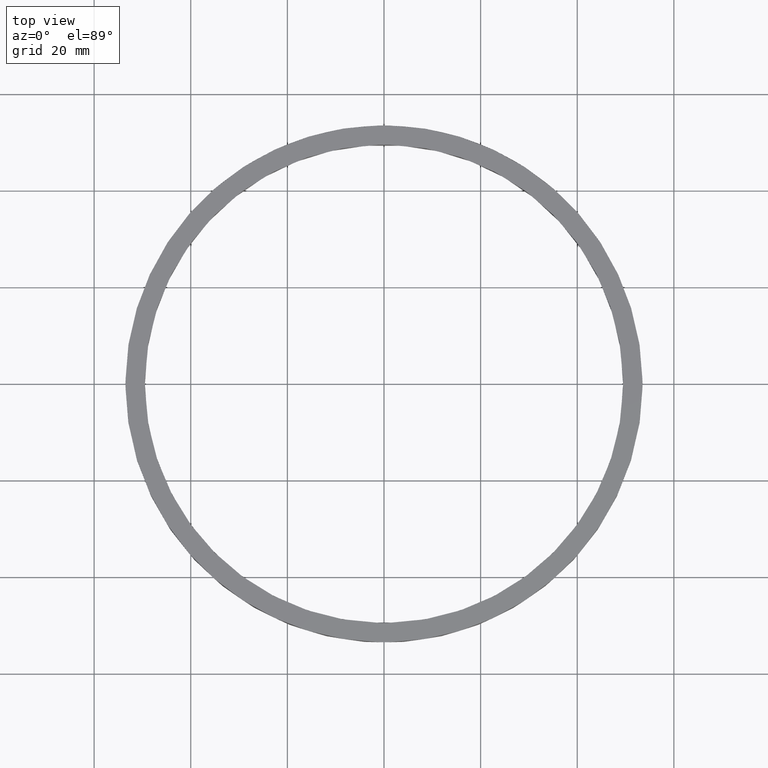
[diagram: clean part render]
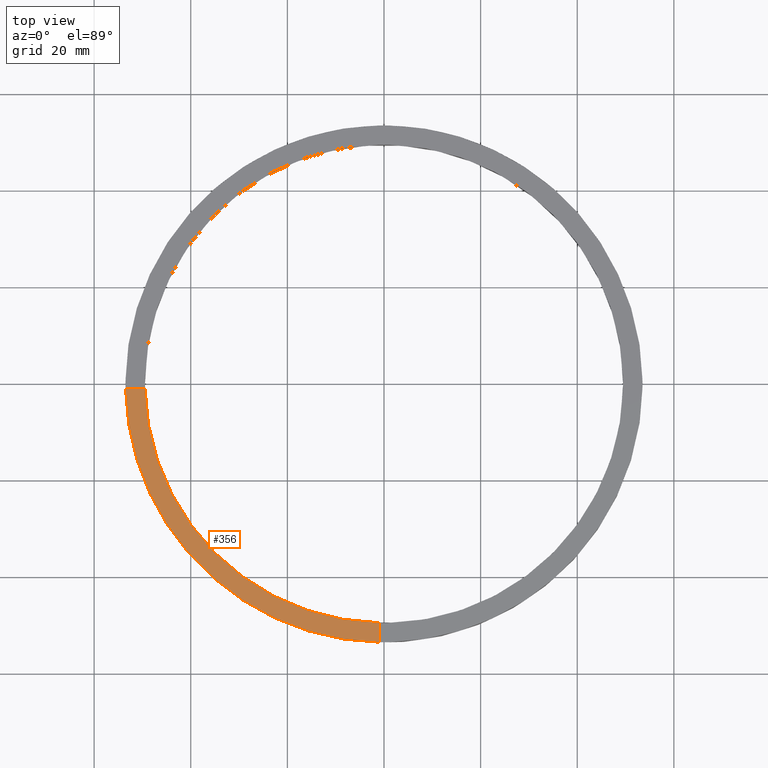
[diagram: same view with one face highlighted and labeled with its STEP entity id]
A machine part, top view. The second image highlights one B-rep face of the part: STEP entity #356.
In plain terms, the highlighted planar face has unit normal (0, 0, 1).
Its self-contained STEP definition (entity closure, byte-faithful):
#13 = CARTESIAN_POINT ( 'NONE',  ( -1.000000000000155875, -53.49065338916696533, 5.000000000000000000 ) ) ;
#18 = DIRECTION ( 'NONE',  ( 1.000000000000000000, 0.000000000000000000, 0.000000000000000000 ) ) ;
#21 = DIRECTION ( 'NONE',  ( 1.000000000000000000, 0.000000000000000000, -0.000000000000000000 ) ) ;
#65 = PLANE ( 'NONE',  #557 ) ;
#77 = LINE ( 'NONE', #460, #603 ) ;
#107 = FACE_OUTER_BOUND ( 'NONE', #176, .T. ) ;
#130 = ORIENTED_EDGE ( 'NONE', *, *, #225, .F. ) ;
#154 = VERTEX_POINT ( 'NONE', #682 ) ;
#170 = VERTEX_POINT ( 'NONE', #13 ) ;
#176 = EDGE_LOOP ( 'NONE', ( #130, #206, #396, #676 ) ) ;
#187 = VERTEX_POINT ( 'NONE', #511 ) ;
#191 = DIRECTION ( 'NONE',  ( 1.000000000000000000, 0.000000000000000000, 0.000000000000000000 ) ) ;
#192 = DIRECTION ( 'NONE',  ( 1.301042606982605074E-16, -1.000000000000000000, 0.000000000000000000 ) ) ;
#205 = CARTESIAN_POINT ( 'NONE',  ( 0.000000000000000000, 0.000000000000000000, 5.000000000000000000 ) ) ;
#206 = ORIENTED_EDGE ( 'NONE', *, *, #334, .F. ) ;
#225 = EDGE_CURVE ( 'NONE', #187, #170, #357, .T. ) ;
#230 = CARTESIAN_POINT ( 'NONE',  ( -49.48989795907849043, -1.000000000000031974, 5.000000000000000000 ) ) ;
#247 = AXIS2_PLACEMENT_3D ( 'NONE', #205, #339, #191 ) ;
#264 = CARTESIAN_POINT ( 'NONE',  ( 0.000000000000000000, 0.000000000000000000, 5.000000000000000000 ) ) ;
#270 = DIRECTION ( 'NONE',  ( 1.000000000000000000, 1.951563910473907735E-16, -0.000000000000000000 ) ) ;
#298 = EDGE_CURVE ( 'NONE', #154, #462, #77, .T. ) ;
#299 = AXIS2_PLACEMENT_3D ( 'NONE', #608, #563, #18 ) ;
#325 = CIRCLE ( 'NONE', #299, 49.50000000000000711 ) ;
#334 = EDGE_CURVE ( 'NONE', #462, #187, #325, .T. ) ;
#339 = DIRECTION ( 'NONE',  ( 0.000000000000000000, 0.000000000000000000, 1.000000000000000000 ) ) ;
#356 = ADVANCED_FACE ( 'NONE', ( #107 ), #65, .T. ) ;
#357 = LINE ( 'NONE', #665, #591 ) ;
#385 = DIRECTION ( 'NONE',  ( 0.000000000000000000, 0.000000000000000000, 1.000000000000000000 ) ) ;
#396 = ORIENTED_EDGE ( 'NONE', *, *, #298, .F. ) ;
#460 = CARTESIAN_POINT ( 'NONE',  ( -43.50000000000018474, -1.000000000000030642, 5.000000000000000000 ) ) ;
#462 = VERTEX_POINT ( 'NONE', #230 ) ;
#490 = EDGE_CURVE ( 'NONE', #154, #170, #627, .T. ) ;
#511 = CARTESIAN_POINT ( 'NONE',  ( -1.000000000000156319, -49.48989795907849043, 5.000000000000000000 ) ) ;
#557 = AXIS2_PLACEMENT_3D ( 'NONE', #264, #385, #21 ) ;
#563 = DIRECTION ( 'NONE',  ( 0.000000000000000000, 0.000000000000000000, 1.000000000000000000 ) ) ;
#591 = VECTOR ( 'NONE', #192, 1000.000000000000000 ) ;
#603 = VECTOR ( 'NONE', #270, 1000.000000000000000 ) ;
#608 = CARTESIAN_POINT ( 'NONE',  ( 0.000000000000000000, 0.000000000000000000, 5.000000000000000000 ) ) ;
#627 = CIRCLE ( 'NONE', #247, 53.50000000000000000 ) ;
#665 = CARTESIAN_POINT ( 'NONE',  ( -1.000000000000157208, -43.50000000000017764, 5.000000000000000000 ) ) ;
#676 = ORIENTED_EDGE ( 'NONE', *, *, #490, .T. ) ;
#682 = CARTESIAN_POINT ( 'NONE',  ( -53.49065338916696533, -1.000000000000032641, 5.000000000000000000 ) ) ;